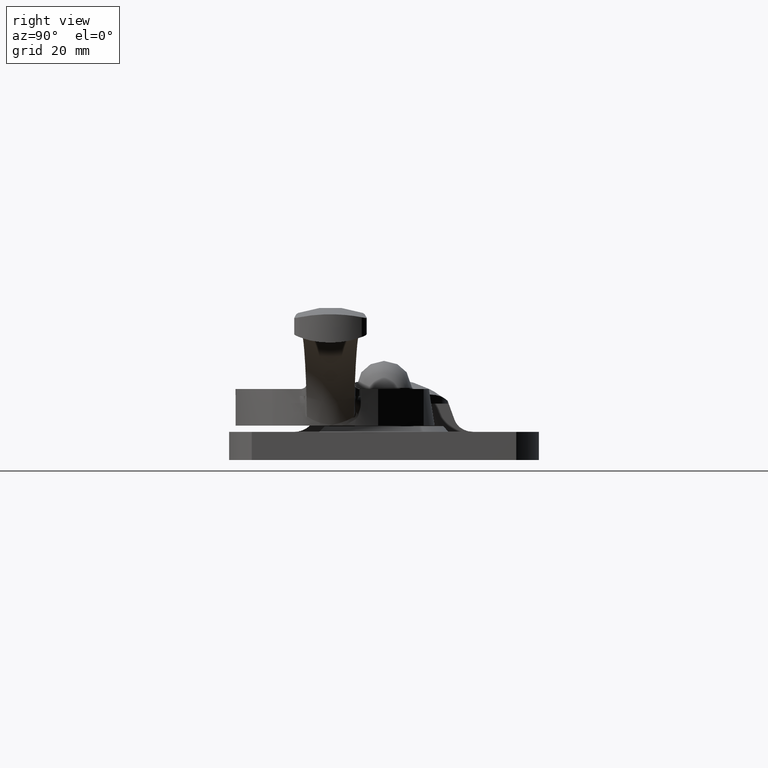
[diagram: clean part render]
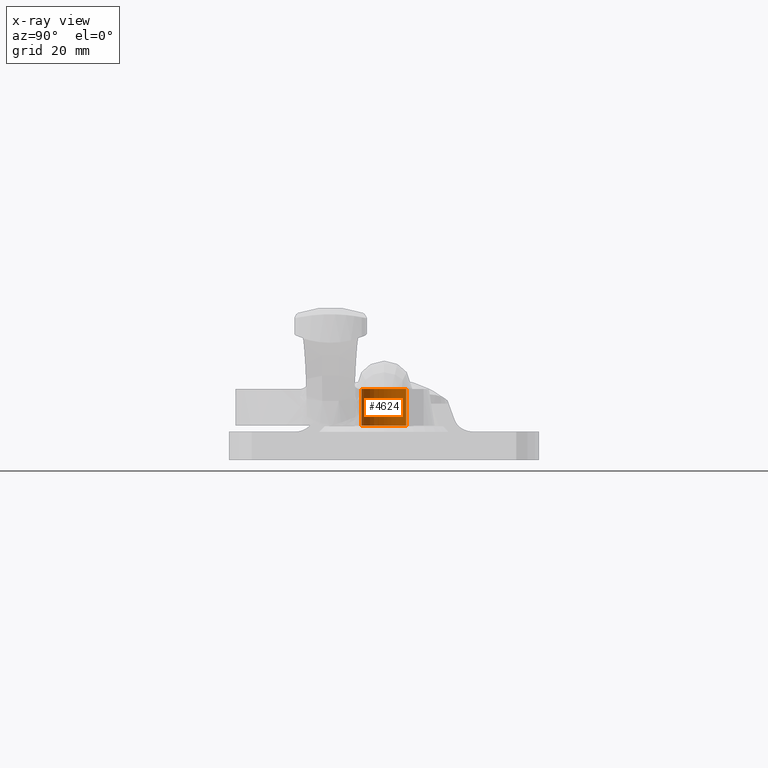
[diagram: x-ray — body ghosted, one internal face saturated and labeled with its STEP entity id]
A machine part, right view, then the same camera in x-ray: the body is ghosted and one INTERNAL B-rep face — a face not visible from any outside direction — is saturated and labeled: STEP entity #4624.
In plain terms, the highlighted face is a freeform B-spline surface patch.
Its self-contained STEP definition (entity closure, byte-faithful):
#4522=CARTESIAN_POINT('',(-0.472136938627034,-3.972038105454666,5.937500000000000));
#4523=CARTESIAN_POINT('',(-0.358458914551911,-3.985550461794422,5.937499999999999));
#4524=CARTESIAN_POINT('',(-0.244194158139428,-3.992539193687467,5.937499999999999));
#4525=CARTESIAN_POINT('',(3.748345035548039,-4.236733351826894,5.937499999999998));
#4526=CARTESIAN_POINT('',(3.992539193687467,-0.244194158139428,5.937499999999999));
#4527=CARTESIAN_POINT('',(4.236733351826894,3.748345035548039,5.937499999999998));
#4528=CARTESIAN_POINT('',(0.244194158139428,3.992539193687467,5.937499999999999));
#4529=CARTESIAN_POINT('',(-0.472136938627034,-3.972038105454666,12.766562500000006));
#4530=CARTESIAN_POINT('',(-0.358458914551911,-3.985550461794422,12.766562500000004));
#4531=CARTESIAN_POINT('',(-0.244194158139428,-3.992539193687467,12.766562499999999));
#4532=CARTESIAN_POINT('',(3.748345035548039,-4.236733351826894,12.766562500000001));
#4533=CARTESIAN_POINT('',(3.992539193687467,-0.244194158139428,12.766562499999999));
#4534=CARTESIAN_POINT('',(4.236733351826894,3.748345035548039,12.766562500000001));
#4535=CARTESIAN_POINT('',(0.244194158139428,3.992539193687467,12.766562499999999));
#4543=(BOUNDED_SURFACE()B_SPLINE_SURFACE(2,1,((#4522,#4529),(#4523,#4530),(#4524,#4531),(#4525,#4532),(#4526,#4533),(#4527,#4534),(#4528,#4535)),.UNSPECIFIED.,.F.,.F.,.U.)B_SPLINE_SURFACE_WITH_KNOTS((3,2,2,3),(2,2),(0.0,0.265096679918781,6.892513677888299,13.519930675857820),(0.0,6.829062500000004),.UNSPECIFIED.)GEOMETRIC_REPRESENTATION_ITEM()RATIONAL_B_SPLINE_SURFACE(((0.977505800795127,0.977505800795127),(0.988284271247462,0.988284271247462),(1.0,1.0),(0.707106781186548,0.707106781186548),(1.0,1.0),(0.707106781186548,0.707106781186548),(1.0,1.0)))REPRESENTATION_ITEM('')SURFACE());
#4544=CARTESIAN_POINT('',(-0.472136938667116,-3.972038105449901,6.100000000000001));
#4545=VERTEX_POINT('',#4544);
#4546=CARTESIAN_POINT('',(4.0,0.0,6.100000000000001));
#4547=VERTEX_POINT('',#4546);
#4548=CARTESIAN_POINT('',(-0.472136938667116,-3.972038105449901,6.100000000000001));
#4549=CARTESIAN_POINT('',(-0.236896478648147,-4.000000000000001,6.100000000000001));
#4550=CARTESIAN_POINT('',(0.0,-4.0,6.100000000000001));
#4551=CARTESIAN_POINT('',(4.000000000000000,-4.000000000000000,6.100000000000001));
#4552=CARTESIAN_POINT('',(4.0,0.0,6.100000000000001));
#4560=(BOUNDED_CURVE()B_SPLINE_CURVE(2,(#4548,#4549,#4550,#4551,#4552),.UNSPECIFIED.,.F.,.U.)B_SPLINE_CURVE_WITH_KNOTS((3,2,3),(0.229562473512233,0.250000000000000,0.500000000000000),.UNSPECIFIED.)CURVE()GEOMETRIC_REPRESENTATION_ITEM()RATIONAL_B_SPLINE_CURVE((0.956026754181200,0.976055948329651,1.0,0.707106781186548,1.0))REPRESENTATION_ITEM(''));
#4561=EDGE_CURVE('',#4545,#4547,#4560,.T.);
#4562=ORIENTED_EDGE('',*,*,#4561,.F.);
#4563=CARTESIAN_POINT('',(-0.472136938667116,-3.972038105449901,12.600000000000000));
#4564=VERTEX_POINT('',#4563);
#4565=CARTESIAN_POINT('',(-0.472136938667116,-3.972038105449901,6.100000000000001));
#4566=CARTESIAN_POINT('',(-0.472136938667116,-3.972038105449901,12.600000000000000));
#4567=QUASI_UNIFORM_CURVE('',1,(#4565,#4566),.UNSPECIFIED.,.F.,.U.);
#4568=EDGE_CURVE('',#4545,#4564,#4567,.T.);
#4569=ORIENTED_EDGE('',*,*,#4568,.T.);
#4570=CARTESIAN_POINT('',(4.0,0.0,12.600000000000000));
#4571=VERTEX_POINT('',#4570);
#4572=CARTESIAN_POINT('',(-0.472136938667116,-3.972038105449900,12.599999999999994));
#4573=CARTESIAN_POINT('',(-0.236896478648146,-4.000000000000001,12.600000000000003));
#4574=CARTESIAN_POINT('',(0.0,-4.0,12.600000000000000));
#4575=CARTESIAN_POINT('',(4.000000000000000,-4.000000000000000,12.599999999999996));
#4576=CARTESIAN_POINT('',(4.0,0.0,12.600000000000000));
#4584=(BOUNDED_CURVE()B_SPLINE_CURVE(2,(#4572,#4573,#4574,#4575,#4576),.UNSPECIFIED.,.F.,.U.)B_SPLINE_CURVE_WITH_KNOTS((3,2,3),(0.229562473512233,0.250000000000000,0.500000000000000),.UNSPECIFIED.)CURVE()GEOMETRIC_REPRESENTATION_ITEM()RATIONAL_B_SPLINE_CURVE((0.956026754181200,0.976055948329651,1.0,0.707106781186548,1.0))REPRESENTATION_ITEM(''));
#4585=EDGE_CURVE('',#4564,#4571,#4584,.T.);
#4586=ORIENTED_EDGE('',*,*,#4585,.T.);
#4587=CARTESIAN_POINT('',(0.244194158270637,3.992539193679443,12.600000000000000));
#4588=VERTEX_POINT('',#4587);
#4589=CARTESIAN_POINT('',(4.0,0.0,12.600000000000000));
#4590=CARTESIAN_POINT('',(4.0,3.762824267374998,12.599999999999996));
#4591=CARTESIAN_POINT('',(0.244194158270637,3.992539193679443,12.600000000000003));
#4599=(BOUNDED_CURVE()B_SPLINE_CURVE(2,(#4589,#4590,#4591),.UNSPECIFIED.,.F.,.U.)B_SPLINE_CURVE_WITH_KNOTS((3,3),(0.500000000000000,0.739332962230627),.UNSPECIFIED.)CURVE()GEOMETRIC_REPRESENTATION_ITEM()RATIONAL_B_SPLINE_CURVE((1.0,0.719603993296453,0.976072041648896))REPRESENTATION_ITEM(''));
#4600=EDGE_CURVE('',#4571,#4588,#4599,.T.);
#4601=ORIENTED_EDGE('',*,*,#4600,.T.);
#4602=CARTESIAN_POINT('',(0.244194158270637,3.992539193679443,6.100000000000001));
#4603=VERTEX_POINT('',#4602);
#4604=CARTESIAN_POINT('',(0.244194158270637,3.992539193679443,6.100000000000001));
#4605=CARTESIAN_POINT('',(0.244194158270637,3.992539193679443,12.600000000000000));
#4606=QUASI_UNIFORM_CURVE('',1,(#4604,#4605),.UNSPECIFIED.,.F.,.U.);
#4607=EDGE_CURVE('',#4603,#4588,#4606,.T.);
#4608=ORIENTED_EDGE('',*,*,#4607,.F.);
#4609=CARTESIAN_POINT('',(4.0,0.0,6.100000000000001));
#4610=CARTESIAN_POINT('',(4.0,3.762824267374998,6.100000000000000));
#4611=CARTESIAN_POINT('',(0.244194158270637,3.992539193679443,6.100000000000000));
#4619=(BOUNDED_CURVE()B_SPLINE_CURVE(2,(#4609,#4610,#4611),.UNSPECIFIED.,.F.,.U.)B_SPLINE_CURVE_WITH_KNOTS((3,3),(0.500000000000000,0.739332962230627),.UNSPECIFIED.)CURVE()GEOMETRIC_REPRESENTATION_ITEM()RATIONAL_B_SPLINE_CURVE((1.0,0.719603993296453,0.976072041648896))REPRESENTATION_ITEM(''));
#4620=EDGE_CURVE('',#4547,#4603,#4619,.T.);
#4621=ORIENTED_EDGE('',*,*,#4620,.F.);
#4622=EDGE_LOOP('',(#4562,#4569,#4586,#4601,#4608,#4621));
#4623=FACE_OUTER_BOUND('',#4622,.T.);
#4624=ADVANCED_FACE('',(#4623),#4543,.F.);